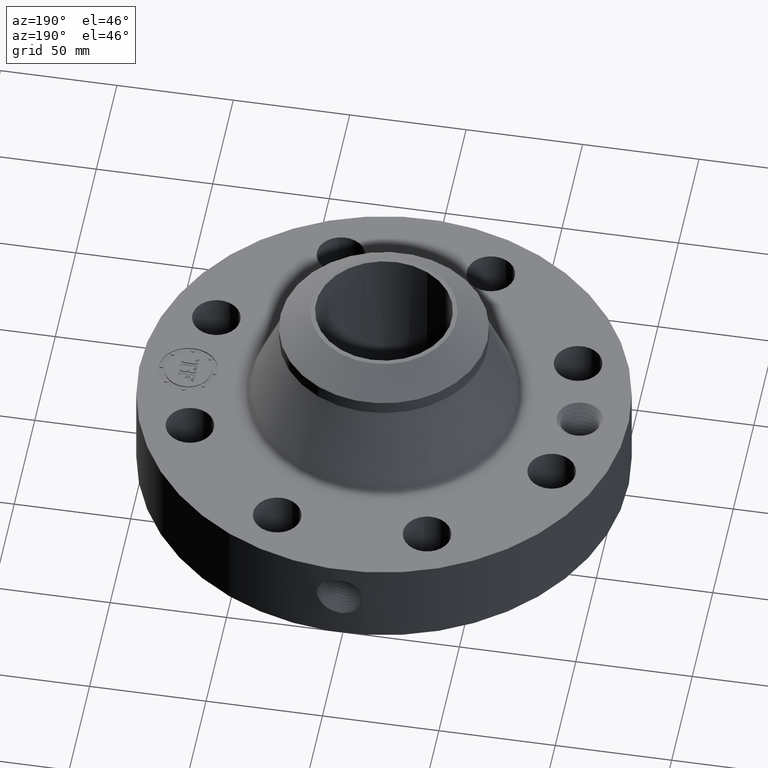
[diagram: clean part render]
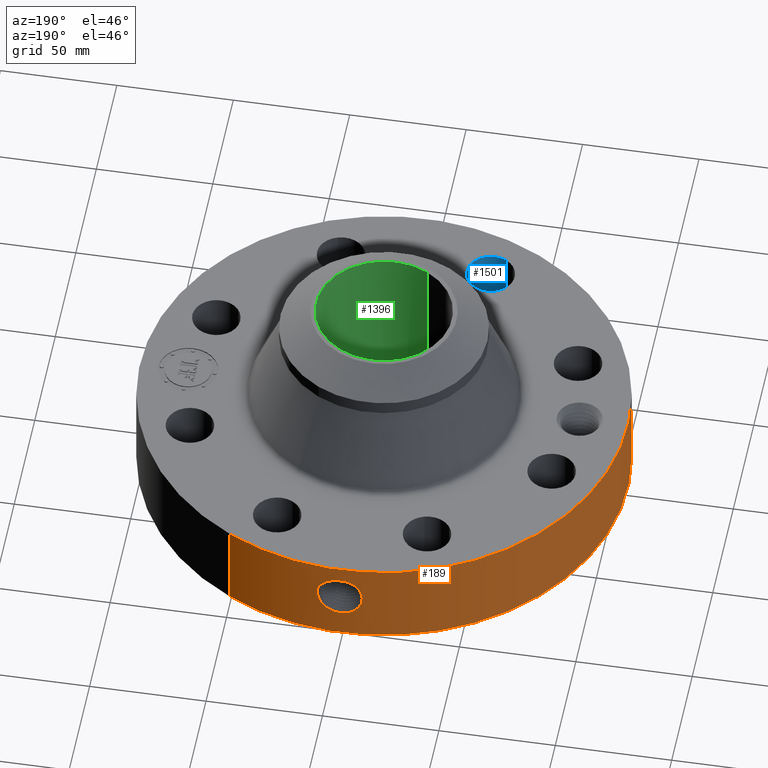
[diagram: same view with three faces highlighted in distinct colors, each labeled with its STEP entity id]
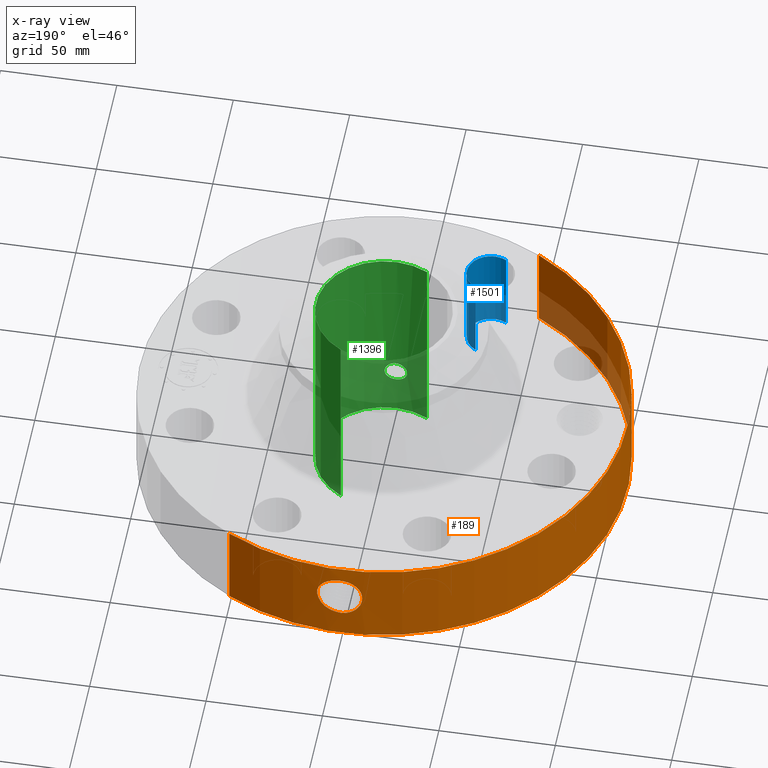
[diagram: x-ray of the same camera — body ghosted, the three highlighted faces saturated]
A machine part, auxiliary view with three faces highlighted in distinct colors.
The next image is the same camera in x-ray (body ghosted, the three faces saturated) — at least one of them is partly hidden behind the body in this view.
Their STEP definitions:

[orange] entity #189 — the highlighted cylindrical surface (partial cylindrical patch) has radius 104.775 mm, axis along (0, 0, -1).
#38=AXIS2_PLACEMENT_3D('Cylinder Axis2P3D',#35,#36,#37) ;
#42=AXIS2_PLACEMENT_3D('Circle Axis2P3D',#40,#41,$) ;
#58=AXIS2_PLACEMENT_3D('Circle Axis2P3D',#56,#57,$) ;
#35=CARTESIAN_POINT('Axis2P3D Location',(0.,0.,1.81000000001)) ;
#40=CARTESIAN_POINT('Axis2P3D Location',(0.,0.,0.0600000000002)) ;
#44=CARTESIAN_POINT('Vertex',(-1.97763034675,-3.62002806781,0.0600000000002)) ;
#46=CARTESIAN_POINT('Vertex',(1.97763034675,3.62002806781,0.0600000000002)) ;
#49=CARTESIAN_POINT('Line Origine',(-1.97763034675,-3.62002806781,0.810000000003)) ;
#53=CARTESIAN_POINT('Vertex',(-1.97763034675,-3.62002806781,1.56000000001)) ;
#56=CARTESIAN_POINT('Axis2P3D Location',(0.,0.,1.56000000001)) ;
#60=CARTESIAN_POINT('Vertex',(1.97763034675,3.62002806781,1.56000000001)) ;
#63=CARTESIAN_POINT('Line Origine',(1.97763034675,3.62002806781,0.810000000003)) ;
#75=CARTESIAN_POINT('Control Point',(-0.0708258696638,4.12439191837,1.28694445408)) ;
#76=CARTESIAN_POINT('Control Point',(-0.0477756042702,4.12478774765,1.29166264764)) ;
#77=CARTESIAN_POINT('Control Point',(-0.0242493397509,4.12499584526,1.29407066085)) ;
#78=CARTESIAN_POINT('Control Point',(-0.000717367785601,4.12499993764,1.29411849621)) ;
#79=CARTESIAN_POINT('Vertex',(-0.0707931255285,4.12439274845,1.28695147494)) ;
#81=CARTESIAN_POINT('Vertex',(-0.000717115675859,4.12499993768,1.29411850626)) ;
#85=CARTESIAN_POINT('Control Point',(-0.0707929875436,4.12439248291,1.28695080973)) ;
#86=CARTESIAN_POINT('Control Point',(-0.105534403893,4.12379616511,1.28076532583)) ;
#87=CARTESIAN_POINT('Control Point',(-0.139240729962,4.12276500955,1.26858978299)) ;
#88=CARTESIAN_POINT('Control Point',(-0.170106274733,4.12149109612,1.25141106894)) ;
#89=CARTESIAN_POINT('Vertex',(-0.170106274733,4.12149109612,1.25141106894)) ;
#93=CARTESIAN_POINT('Control Point',(-0.170106274733,4.12149109612,1.25141106894)) ;
#94=CARTESIAN_POINT('Control Point',(-0.189944744257,4.1206723031,1.24036965022)) ;
#95=CARTESIAN_POINT('Control Point',(-0.208623588126,4.11975702947,1.22728178951)) ;
#96=CARTESIAN_POINT('Control Point',(-0.225825151081,4.11881390709,1.21251850282)) ;
#97=CARTESIAN_POINT('Vertex',(-0.225825362099,4.11881409519,1.21251874593)) ;
#101=CARTESIAN_POINT('Control Point',(-0.351866700326,4.10996530707,0.975464361167)) ;
#102=CARTESIAN_POINT('Control Point',(-0.344978867299,4.11055499552,1.04398627872)) ;
#103=CARTESIAN_POINT('Control Point',(-0.320314482869,4.11268399222,1.11077407827)) ;
#104=CARTESIAN_POINT('Control Point',(-0.27876144741,4.1159117292,1.1685398464)) ;
#105=CARTESIAN_POINT('Control Point',(-0.225809776381,4.11881475003,1.21253161272)) ;
#106=CARTESIAN_POINT('Vertex',(-0.351866537775,4.10996536585,0.975466055539)) ;
#110=CARTESIAN_POINT('Control Point',(-0.0285867200519,4.12490094421,0.531014415425)) ;
#111=CARTESIAN_POINT('Control Point',(-0.0731508323991,4.12459210242,0.53676262059)) ;
#112=CARTESIAN_POINT('Control Point',(-0.11660591181,4.12368909709,0.549610401931)) ;
#113=CARTESIAN_POINT('Control Point',(-0.15731365618,4.12226228881,0.569187265491)) ;
#114=CARTESIAN_POINT('Control Point',(-0.218412033156,4.11943105988,0.610865799684)) ;
#115=CARTESIAN_POINT('Control Point',(-0.267085984188,4.11640755897,0.664664117666)) ;
#116=CARTESIAN_POINT('Control Point',(-0.28431642276,4.11523449191,0.687667885458)) ;
#117=CARTESIAN_POINT('Control Point',(-0.32571007167,4.11223072828,0.754664964772)) ;
#118=CARTESIAN_POINT('Control Point',(-0.349728178371,4.11016858959,0.829194136441)) ;
#119=CARTESIAN_POINT('Control Point',(-0.357709929823,4.10945203007,0.878220924907)) ;
#120=CARTESIAN_POINT('Control Point',(-0.358385651064,4.10940720015,0.927417505239)) ;
#121=CARTESIAN_POINT('Control Point',(-0.351866458174,4.1099653278,0.975466036918)) ;
#122=CARTESIAN_POINT('Vertex',(-0.0285867200519,4.12490094421,0.531014415425)) ;
#126=CARTESIAN_POINT('Control Point',(-0.0285867200519,4.12490094421,0.531014415425)) ;
#127=CARTESIAN_POINT('Control Point',(-0.0190504033792,4.12496703356,0.530850653595)) ;
#128=CARTESIAN_POINT('Control Point',(-0.00951371795879,4.12500000631,0.530970811253)) ;
#129=CARTESIAN_POINT('Control Point',(2.72878353804E-006,4.12500000002,0.531374667805)) ;
#130=CARTESIAN_POINT('Vertex',(2.72878353841E-006,4.12500000002,0.531374667805)) ;
#134=CARTESIAN_POINT('Control Point',(0.195057006855,4.12038563295,0.582957545943)) ;
#135=CARTESIAN_POINT('Control Point',(0.1349298109,4.12323202451,0.55166378797)) ;
#136=CARTESIAN_POINT('Control Point',(0.0678695334246,4.12499995512,0.534254782757)) ;
#137=CARTESIAN_POINT('Control Point',(2.72878353804E-006,4.12500000002,0.531374667805)) ;
#138=CARTESIAN_POINT('Vertex',(0.195057006855,4.12038563295,0.582957545943)) ;
#142=CARTESIAN_POINT('Control Point',(0.277741653318,4.11563902379,0.638820641839)) ;
#143=CARTESIAN_POINT('Control Point',(0.252440207961,4.11734647802,0.617037280358)) ;
#144=CARTESIAN_POINT('Control Point',(0.224590631534,4.11898752584,0.598328594931)) ;
#145=CARTESIAN_POINT('Control Point',(0.195057006855,4.12038563295,0.582957545943)) ;
#146=CARTESIAN_POINT('Vertex',(0.277741653318,4.11563902379,0.638820641839)) ;
#150=CARTESIAN_POINT('Control Point',(0.277741653318,4.11563902379,0.638820641839)) ;
#151=CARTESIAN_POINT('Control Point',(0.346084614526,4.11102693635,0.706500366905)) ;
#152=CARTESIAN_POINT('Control Point',(0.392503228748,4.1063284801,0.795167285734)) ;
#153=CARTESIAN_POINT('Control Point',(0.412343746852,4.10434301328,0.891847251889)) ;
#154=CARTESIAN_POINT('Control Point',(0.406546637881,4.1049171528,0.98790255717)) ;
#155=CARTESIAN_POINT('Vertex',(0.406546637881,4.1049171528,0.98790255717)) ;
#159=CARTESIAN_POINT('Control Point',(0.406546637881,4.1049171528,0.98790255717)) ;
#160=CARTESIAN_POINT('Control Point',(0.39669630803,4.10589271901,1.03992594033)) ;
#161=CARTESIAN_POINT('Control Point',(0.377107791088,4.10780290855,1.08979808973)) ;
#162=CARTESIAN_POINT('Control Point',(0.348680840751,4.11043683845,1.13488020746)) ;
#163=CARTESIAN_POINT('Control Point',(0.272595100949,4.11655133167,1.21936561237)) ;
#164=CARTESIAN_POINT('Control Point',(0.17367668577,4.1218983007,1.27163748858)) ;
#165=CARTESIAN_POINT('Control Point',(0.116496598116,4.12398624661,1.28950778802)) ;
#166=CARTESIAN_POINT('Control Point',(0.0578342871643,4.12500036264,1.29698939342)) ;
#167=CARTESIAN_POINT('Control Point',(-2.58579355138E-005,4.12499999994,1.29415298439)) ;
#168=CARTESIAN_POINT('Vertex',(-2.585793551E-005,4.12499999994,1.29415298439)) ;
#172=CARTESIAN_POINT('Control Point',(-0.00071711566355,4.12499993768,1.29411850625)) ;
#173=CARTESIAN_POINT('Control Point',(-0.000371509656304,4.12499999777,1.29413603992)) ;
#174=CARTESIAN_POINT('Control Point',(-2.58579439156E-005,4.12499999994,1.29415298439)) ;
#36=DIRECTION('Axis2P3D Direction',(0.,0.,-0.0393700787402)) ;
#37=DIRECTION('Axis2P3D XDirection',(0.0188750212049,0.0345504945626,0.)) ;
#41=DIRECTION('Axis2P3D Direction',(0.,0.,-0.0393700787402)) ;
#50=DIRECTION('Vector Direction',(0.,0.,-0.0393700787402)) ;
#57=DIRECTION('Axis2P3D Direction',(0.,0.,-0.0393700787402)) ;
#64=DIRECTION('Vector Direction',(0.,0.,-0.0393700787402)) ;
#51=VECTOR('Line Direction',#50,0.0393700787402) ;
#65=VECTOR('Line Direction',#64,0.0393700787402) ;
#69=ORIENTED_EDGE('',*,*,#48,.F.) ;
#70=ORIENTED_EDGE('',*,*,#55,.T.) ;
#71=ORIENTED_EDGE('',*,*,#62,.T.) ;
#72=ORIENTED_EDGE('',*,*,#67,.F.) ;
#177=ORIENTED_EDGE('',*,*,#83,.F.) ;
#178=ORIENTED_EDGE('',*,*,#91,.T.) ;
#179=ORIENTED_EDGE('',*,*,#99,.T.) ;
#180=ORIENTED_EDGE('',*,*,#108,.F.) ;
#181=ORIENTED_EDGE('',*,*,#124,.F.) ;
#182=ORIENTED_EDGE('',*,*,#132,.T.) ;
#183=ORIENTED_EDGE('',*,*,#140,.F.) ;
#184=ORIENTED_EDGE('',*,*,#148,.F.) ;
#185=ORIENTED_EDGE('',*,*,#157,.T.) ;
#186=ORIENTED_EDGE('',*,*,#170,.T.) ;
#187=ORIENTED_EDGE('',*,*,#175,.F.) ;
#188=FACE_BOUND('',#176,.T.) ;
#189=ADVANCED_FACE('PartBody',(#73,#188),#39,.T.) ;
#74=B_SPLINE_CURVE_WITH_KNOTS('',3,(#75,#76,#77,#78),.UNSPECIFIED.,.F.,.U.,(4,4),(3.91174753729,6.52241187186),.UNSPECIFIED.) ;
#84=B_SPLINE_CURVE_WITH_KNOTS('',3,(#85,#86,#87,#88),.UNSPECIFIED.,.F.,.U.,(4,4),(0.,3.96493926498),.UNSPECIFIED.) ;
#92=B_SPLINE_CURVE_WITH_KNOTS('',3,(#93,#94,#95,#96),.UNSPECIFIED.,.F.,.U.,(4,4),(0.,2.54841856453),.UNSPECIFIED.) ;
#100=B_SPLINE_CURVE_WITH_KNOTS('',4,(#101,#102,#103,#104,#105),.UNSPECIFIED.,.F.,.U.,(5,5),(14.8279676838,25.0223849736),.UNSPECIFIED.) ;
#109=B_SPLINE_CURVE_WITH_KNOTS('',5,(#110,#111,#112,#113,#114,#115,#116,#117,#118,#119,#120,#121),.UNSPECIFIED.,.F.,.U.,(6,3,3,6),(0.,7.80985906729,12.9724794118,22.0575185828),.UNSPECIFIED.) ;
#125=B_SPLINE_CURVE_WITH_KNOTS('',3,(#126,#127,#128,#129),.UNSPECIFIED.,.F.,.U.,(4,4),(0.,0.994579949519),.UNSPECIFIED.) ;
#133=B_SPLINE_CURVE_WITH_KNOTS('',3,(#134,#135,#136,#137),.UNSPECIFIED.,.F.,.U.,(4,4),(0.,7.09287457873),.UNSPECIFIED.) ;
#141=B_SPLINE_CURVE_WITH_KNOTS('',3,(#142,#143,#144,#145),.UNSPECIFIED.,.F.,.U.,(4,4),(0.,3.48391923061),.UNSPECIFIED.) ;
#149=B_SPLINE_CURVE_WITH_KNOTS('',4,(#150,#151,#152,#153,#154),.UNSPECIFIED.,.F.,.U.,(5,5),(0.,13.3803771452),.UNSPECIFIED.) ;
#158=B_SPLINE_CURVE_WITH_KNOTS('',5,(#159,#160,#161,#162,#163,#164,#165,#166,#167),.UNSPECIFIED.,.F.,.U.,(6,3,6),(0.,9.20582229301,20.0210803141),.UNSPECIFIED.) ;
#171=B_SPLINE_CURVE_WITH_KNOTS('',2,(#172,#173,#174),.UNSPECIFIED.,.F.,.U.,(3,3),(1.12444292039,1.15028670438),.UNSPECIFIED.) ;
#43=CIRCLE('generated circle',#42,4.12500000002) ;
#59=CIRCLE('generated circle',#58,4.12500000002) ;
#39=CYLINDRICAL_SURFACE('generated cylinder',#38,4.12500000002) ;
#48=EDGE_CURVE('',#45,#47,#43,.T.) ;
#55=EDGE_CURVE('',#45,#54,#52,.F.) ;
#62=EDGE_CURVE('',#54,#61,#59,.T.) ;
#67=EDGE_CURVE('',#47,#61,#66,.F.) ;
#83=EDGE_CURVE('',#80,#82,#74,.T.) ;
#91=EDGE_CURVE('',#80,#90,#84,.T.) ;
#99=EDGE_CURVE('',#90,#98,#92,.T.) ;
#108=EDGE_CURVE('',#107,#98,#100,.T.) ;
#124=EDGE_CURVE('',#123,#107,#109,.T.) ;
#132=EDGE_CURVE('',#123,#131,#125,.T.) ;
#140=EDGE_CURVE('',#139,#131,#133,.T.) ;
#148=EDGE_CURVE('',#147,#139,#141,.T.) ;
#157=EDGE_CURVE('',#147,#156,#149,.T.) ;
#170=EDGE_CURVE('',#156,#169,#158,.T.) ;
#175=EDGE_CURVE('',#82,#169,#171,.T.) ;
#68=EDGE_LOOP('',(#69,#70,#71,#72)) ;
#176=EDGE_LOOP('',(#177,#178,#179,#180,#181,#182,#183,#184,#185,#186,#187)) ;
#73=FACE_OUTER_BOUND('',#68,.T.) ;
#52=LINE('Line',#49,#51) ;
#66=LINE('Line',#63,#65) ;
#45=VERTEX_POINT('',#44) ;
#47=VERTEX_POINT('',#46) ;
#54=VERTEX_POINT('',#53) ;
#61=VERTEX_POINT('',#60) ;
#80=VERTEX_POINT('',#79) ;
#82=VERTEX_POINT('',#81) ;
#90=VERTEX_POINT('',#89) ;
#98=VERTEX_POINT('',#97) ;
#107=VERTEX_POINT('',#106) ;
#123=VERTEX_POINT('',#122) ;
#131=VERTEX_POINT('',#130) ;
#139=VERTEX_POINT('',#138) ;
#147=VERTEX_POINT('',#146) ;
#156=VERTEX_POINT('',#155) ;
#169=VERTEX_POINT('',#168) ;

[blue] entity #1501 — the highlighted cylindrical surface (edge-blend (fillet) strip) has radius 10.287 mm, axis along (0, -0, -1).
#278=AXIS2_PLACEMENT_3D('Circle Axis2P3D',#276,#277,$) ;
#604=AXIS2_PLACEMENT_3D('Circle Axis2P3D',#602,#603,$) ;
#1483=AXIS2_PLACEMENT_3D('Cylinder Axis2P3D',#1480,#1481,#1482) ;
#276=CARTESIAN_POINT('Axis2P3D Location',(-1.26668216113,-3.05804125262,0.0600000000002)) ;
#280=CARTESIAN_POINT('Vertex',(-1.072514818,-2.70262031506,0.0600000000002)) ;
#282=CARTESIAN_POINT('Vertex',(-1.46084950427,-3.41346219019,0.0600000000002)) ;
#597=CARTESIAN_POINT('Vertex',(-1.46084950427,-3.41346219019,1.56000000001)) ;
#599=CARTESIAN_POINT('Vertex',(-1.072514818,-2.70262031506,1.56000000001)) ;
#602=CARTESIAN_POINT('Axis2P3D Location',(-1.26668216113,-3.05804125262,1.56000000001)) ;
#1480=CARTESIAN_POINT('Axis2P3D Location',(-1.26668216113,-3.05804125262,1.55606299213)) ;
#1485=CARTESIAN_POINT('Line Origine',(-1.072514818,-2.70262031506,0.810000000003)) ;
#1490=CARTESIAN_POINT('Line Origine',(-1.46084950427,-3.41346219019,0.810000000003)) ;
#277=DIRECTION('Axis2P3D Direction',(0.,0.,-0.0393700787402)) ;
#603=DIRECTION('Axis2P3D Direction',(0.,0.,-0.0393700787402)) ;
#1481=DIRECTION('Axis2P3D Direction',(0.,-0.,-0.0393700787402)) ;
#1482=DIRECTION('Axis2P3D XDirection',(-0.0188750212049,-0.0345504945626,0.)) ;
#1486=DIRECTION('Vector Direction',(0.,0.,-0.0393700787402)) ;
#1491=DIRECTION('Vector Direction',(0.,0.,-0.0393700787402)) ;
#1487=VECTOR('Line Direction',#1486,0.0393700787402) ;
#1492=VECTOR('Line Direction',#1491,0.0393700787402) ;
#1496=ORIENTED_EDGE('',*,*,#1489,.F.) ;
#1497=ORIENTED_EDGE('',*,*,#284,.T.) ;
#1498=ORIENTED_EDGE('',*,*,#1494,.T.) ;
#1499=ORIENTED_EDGE('',*,*,#606,.F.) ;
#1501=ADVANCED_FACE('PartBody',(#1500),#1484,.F.) ;
#279=CIRCLE('generated circle',#278,0.405000000002) ;
#605=CIRCLE('generated circle',#604,0.405000000002) ;
#1484=CYLINDRICAL_SURFACE('generated cylinder',#1483,0.405000000002) ;
#284=EDGE_CURVE('',#281,#283,#279,.T.) ;
#606=EDGE_CURVE('',#600,#598,#605,.T.) ;
#1489=EDGE_CURVE('',#281,#600,#1488,.F.) ;
#1494=EDGE_CURVE('',#283,#598,#1493,.F.) ;
#1495=EDGE_LOOP('',(#1496,#1497,#1498,#1499)) ;
#1500=FACE_OUTER_BOUND('',#1495,.T.) ;
#1488=LINE('Line',#1485,#1487) ;
#1493=LINE('Line',#1490,#1492) ;
#281=VERTEX_POINT('',#280) ;
#283=VERTEX_POINT('',#282) ;
#598=VERTEX_POINT('',#597) ;
#600=VERTEX_POINT('',#599) ;

[green] entity #1396 — the highlighted cylindrical surface (partial cylindrical patch) has radius 29.21 mm, axis along (0, 0, -1).
#242=AXIS2_PLACEMENT_3D('Circle Axis2P3D',#240,#241,$) ;
#1327=AXIS2_PLACEMENT_3D('Cylinder Axis2P3D',#1324,#1325,#1326) ;
#1331=AXIS2_PLACEMENT_3D('Circle Axis2P3D',#1329,#1330,$) ;
#240=CARTESIAN_POINT('Axis2P3D Location',(0.,0.,0.0600000000002)) ;
#244=CARTESIAN_POINT('Vertex',(0.551339369397,1.00921994618,0.0600000000002)) ;
#246=CARTESIAN_POINT('Vertex',(-0.551339369397,-1.00921994618,0.0600000000002)) ;
#1324=CARTESIAN_POINT('Axis2P3D Location',(0.,0.,1.81000000001)) ;
#1329=CARTESIAN_POINT('Axis2P3D Location',(0.,0.,3.56000000001)) ;
#1333=CARTESIAN_POINT('Vertex',(0.551339369397,1.00921994618,3.56000000001)) ;
#1335=CARTESIAN_POINT('Vertex',(-0.551339369397,-1.00921994618,3.56000000001)) ;
#1338=CARTESIAN_POINT('Line Origine',(0.551339369397,1.00921994618,1.81000000001)) ;
#1343=CARTESIAN_POINT('Line Origine',(-0.551339369397,-1.00921994618,1.81000000001)) ;
#1355=CARTESIAN_POINT('Control Point',(0.16674068676,-1.13784776811,0.848909147669)) ;
#1356=CARTESIAN_POINT('Control Point',(0.155854325365,-1.13944306005,0.828981796801)) ;
#1357=CARTESIAN_POINT('Control Point',(0.142001217671,-1.14134011032,0.810699372637)) ;
#1358=CARTESIAN_POINT('Control Point',(0.125504434547,-1.14334720129,0.794631915042)) ;
#1359=CARTESIAN_POINT('Control Point',(0.0790212134131,-1.14797603774,0.761306673846)) ;
#1360=CARTESIAN_POINT('Control Point',(0.0227970756104,-1.15055722118,0.746689479464)) ;
#1361=CARTESIAN_POINT('Control Point',(-0.0124175483682,-1.15073155023,0.74574214119)) ;
#1362=CARTESIAN_POINT('Control Point',(-0.0864532992487,-1.14800992216,0.760817444789)) ;
#1363=CARTESIAN_POINT('Control Point',(-0.145717367981,-1.14133930427,0.808362244291)) ;
#1364=CARTESIAN_POINT('Control Point',(-0.170168506604,-1.13747922455,0.841917191048)) ;
#1365=CARTESIAN_POINT('Control Point',(-0.193158594034,-1.13368180249,0.90260255573)) ;
#1366=CARTESIAN_POINT('Control Point',(-0.190336176654,-1.13413354695,0.966108561225)) ;
#1367=CARTESIAN_POINT('Control Point',(-0.185742661257,-1.13492690107,0.989055821553)) ;
#1368=CARTESIAN_POINT('Control Point',(-0.177762089684,-1.13623268712,1.01091630961)) ;
#1369=CARTESIAN_POINT('Control Point',(-0.16674068676,-1.13784776811,1.03109085234)) ;
#1370=CARTESIAN_POINT('Vertex',(0.16674068676,-1.13784776811,0.848909147669)) ;
#1372=CARTESIAN_POINT('Vertex',(-0.16674068676,-1.13784776811,1.03109085234)) ;
#1376=CARTESIAN_POINT('Control Point',(-0.16674068676,-1.13784776811,1.03109085234)) ;
#1377=CARTESIAN_POINT('Control Point',(-0.155854325362,-1.13944306005,1.05101820321)) ;
#1378=CARTESIAN_POINT('Control Point',(-0.142001217664,-1.14134011032,1.06930062738)) ;
#1379=CARTESIAN_POINT('Control Point',(-0.125504434554,-1.14334720129,1.08536808496)) ;
#1380=CARTESIAN_POINT('Control Point',(-0.079021213416,-1.14797603774,1.11869332616)) ;
#1381=CARTESIAN_POINT('Control Point',(-0.0227970756074,-1.15055722118,1.13331052054)) ;
#1382=CARTESIAN_POINT('Control Point',(0.0124175483703,-1.15073155023,1.13425785882)) ;
#1383=CARTESIAN_POINT('Control Point',(0.0864532992531,-1.14800992216,1.11918255522)) ;
#1384=CARTESIAN_POINT('Control Point',(0.145717367986,-1.14133930427,1.07163775571)) ;
#1385=CARTESIAN_POINT('Control Point',(0.170168506604,-1.13747922455,1.03808280896)) ;
#1386=CARTESIAN_POINT('Control Point',(0.193158594036,-1.13368180249,0.977397444274)) ;
#1387=CARTESIAN_POINT('Control Point',(0.190336176653,-1.13413354695,0.913891438773)) ;
#1388=CARTESIAN_POINT('Control Point',(0.18574266126,-1.13492690107,0.89094417846)) ;
#1389=CARTESIAN_POINT('Control Point',(0.177762089686,-1.13623268712,0.869083690401)) ;
#1390=CARTESIAN_POINT('Control Point',(0.16674068676,-1.13784776811,0.848909147669)) ;
#241=DIRECTION('Axis2P3D Direction',(0.,0.,-0.0393700787402)) ;
#1325=DIRECTION('Axis2P3D Direction',(0.,0.,-0.0393700787402)) ;
#1326=DIRECTION('Axis2P3D XDirection',(-0.0188750212049,-0.0345504945626,0.)) ;
#1330=DIRECTION('Axis2P3D Direction',(0.,0.,-0.0393700787402)) ;
#1339=DIRECTION('Vector Direction',(0.,0.,-0.0393700787402)) ;
#1344=DIRECTION('Vector Direction',(0.,0.,-0.0393700787402)) ;
#1340=VECTOR('Line Direction',#1339,0.0393700787402) ;
#1345=VECTOR('Line Direction',#1344,0.0393700787402) ;
#1349=ORIENTED_EDGE('',*,*,#1337,.F.) ;
#1350=ORIENTED_EDGE('',*,*,#1342,.T.) ;
#1351=ORIENTED_EDGE('',*,*,#248,.T.) ;
#1352=ORIENTED_EDGE('',*,*,#1347,.F.) ;
#1393=ORIENTED_EDGE('',*,*,#1374,.F.) ;
#1394=ORIENTED_EDGE('',*,*,#1391,.F.) ;
#1395=FACE_BOUND('',#1392,.T.) ;
#1396=ADVANCED_FACE('PartBody',(#1353,#1395),#1328,.F.) ;
#1354=B_SPLINE_CURVE_WITH_KNOTS('',5,(#1355,#1356,#1357,#1358,#1359,#1360,#1361,#1362,#1363,#1364,#1365,#1366,#1367,#1368,#1369),.UNSPECIFIED.,.F.,.U.,(6,3,3,3,6),(0.,4.08836309646,10.1923759561,17.33853895,21.4776167699),.UNSPECIFIED.) ;
#1375=B_SPLINE_CURVE_WITH_KNOTS('',5,(#1376,#1377,#1378,#1379,#1380,#1381,#1382,#1383,#1384,#1385,#1386,#1387,#1388,#1389,#1390),.UNSPECIFIED.,.F.,.U.,(6,3,3,3,6),(0.,4.08836309746,10.1923759572,17.3385389513,21.4776167718),.UNSPECIFIED.) ;
#243=CIRCLE('generated circle',#242,1.15) ;
#1332=CIRCLE('generated circle',#1331,1.15) ;
#1328=CYLINDRICAL_SURFACE('generated cylinder',#1327,1.15) ;
#248=EDGE_CURVE('',#245,#247,#243,.T.) ;
#1337=EDGE_CURVE('',#1334,#1336,#1332,.T.) ;
#1342=EDGE_CURVE('',#1334,#245,#1341,.T.) ;
#1347=EDGE_CURVE('',#1336,#247,#1346,.T.) ;
#1374=EDGE_CURVE('',#1371,#1373,#1354,.T.) ;
#1391=EDGE_CURVE('',#1373,#1371,#1375,.T.) ;
#1348=EDGE_LOOP('',(#1349,#1350,#1351,#1352)) ;
#1392=EDGE_LOOP('',(#1393,#1394)) ;
#1353=FACE_OUTER_BOUND('',#1348,.T.) ;
#1341=LINE('Line',#1338,#1340) ;
#1346=LINE('Line',#1343,#1345) ;
#245=VERTEX_POINT('',#244) ;
#247=VERTEX_POINT('',#246) ;
#1334=VERTEX_POINT('',#1333) ;
#1336=VERTEX_POINT('',#1335) ;
#1371=VERTEX_POINT('',#1370) ;
#1373=VERTEX_POINT('',#1372) ;